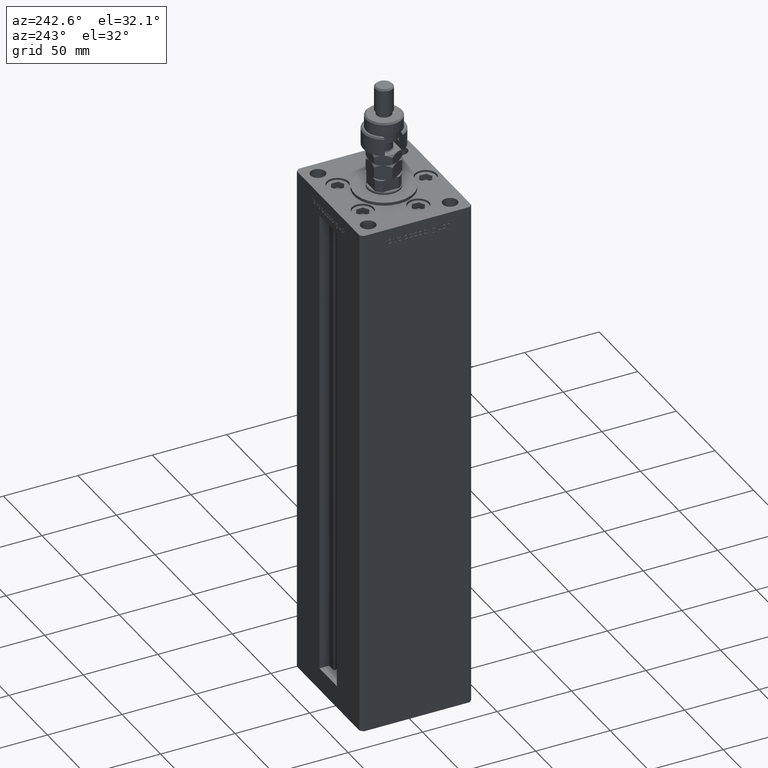
[diagram: clean part render]
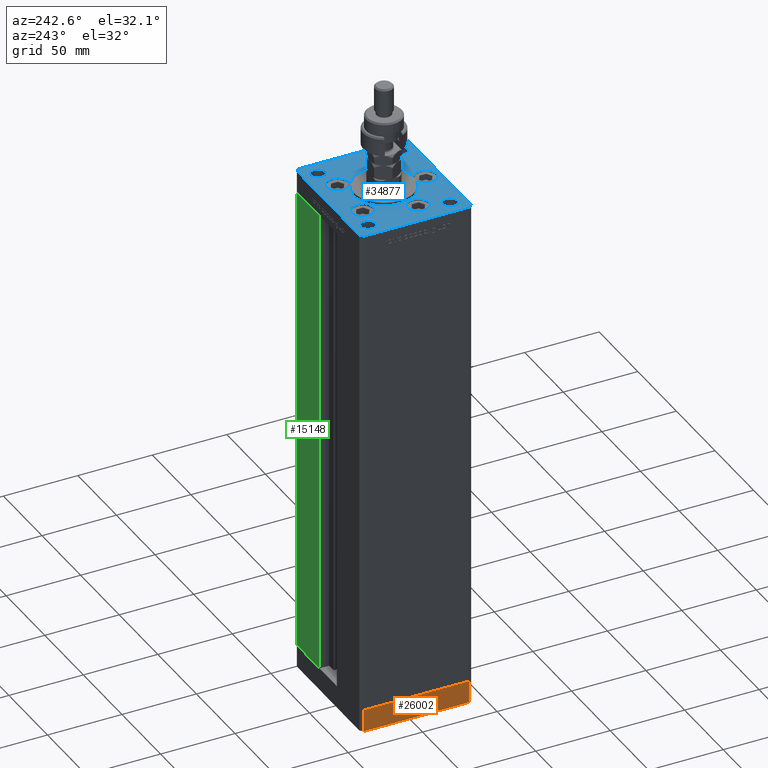
[diagram: same view with three faces highlighted in distinct colors, each labeled with its STEP entity id]
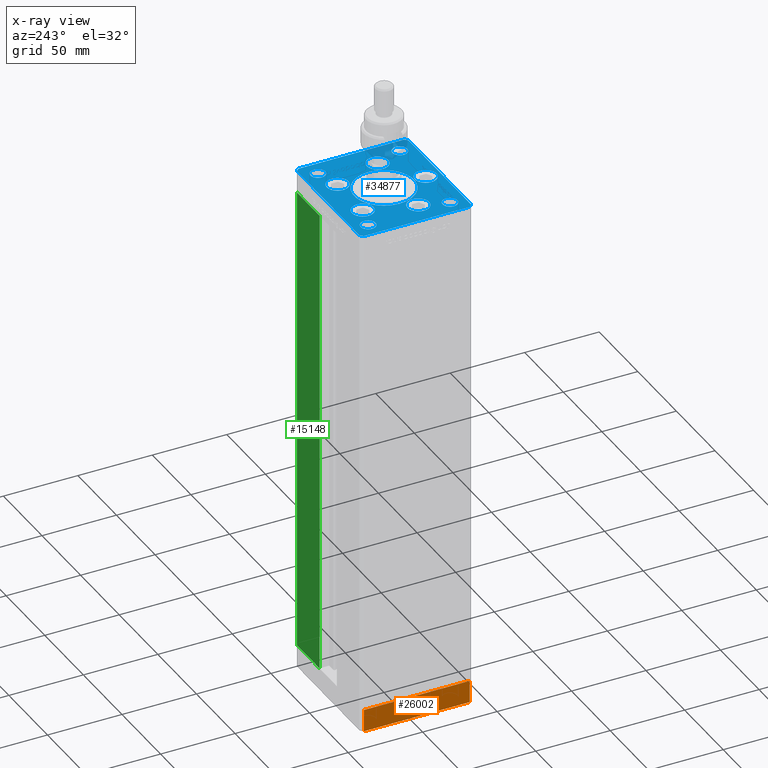
[diagram: x-ray of the same camera — body ghosted, the three highlighted faces saturated]
A machine part, auxiliary view with three faces highlighted in distinct colors.
The next image is the same camera in x-ray (body ghosted, the three faces saturated) — at least one of them is partly hidden behind the body in this view.
Their STEP definitions:

[orange] entity #26002 — the highlighted planar face has unit normal (-1, 0, 0).
#5503 = EDGE_CURVE ( 'NONE', #27085, #37150, #33985, .T. ) ;
#5881 = CARTESIAN_POINT ( 'NONE',  ( 42.49999999999992895, 35.50000000000000000, -15.00000000000000000 ) ) ;
#8294 = VECTOR ( 'NONE', #40926, 1000.000000000000000 ) ;
#8315 = DIRECTION ( 'NONE',  ( 0.000000000000000000, 0.000000000000000000, 1.000000000000000000 ) ) ;
#11657 = VECTOR ( 'NONE', #42355, 1000.000000000000000 ) ;
#11807 = VECTOR ( 'NONE', #8315, 1000.000000000000000 ) ;
#12028 = FACE_OUTER_BOUND ( 'NONE', #53288, .T. ) ;
#13415 = EDGE_CURVE ( 'NONE', #28208, #25765, #20072, .T. ) ;
#14795 = ORIENTED_EDGE ( 'NONE', *, *, #28444, .F. ) ;
#16181 = DIRECTION ( 'NONE',  ( 1.000000000000000000, 1.172770800660376741E-15, -0.000000000000000000 ) ) ;
#17286 = CARTESIAN_POINT ( 'NONE',  ( 42.50000000000000711, -35.50000000000000000, -15.00000000000000000 ) ) ;
#20072 = LINE ( 'NONE', #37862, #8294 ) ;
#21088 = CARTESIAN_POINT ( 'NONE',  ( 42.50000000000000711, -35.50000000000000000, -15.00000000000000000 ) ) ;
#21982 = CARTESIAN_POINT ( 'NONE',  ( 42.50000000000000711, -35.50000000000000000, -15.00000000000000000 ) ) ;
#22293 = DIRECTION ( 'NONE',  ( 0.000000000000000000, 0.000000000000000000, 1.000000000000000000 ) ) ;
#25247 = LINE ( 'NONE', #21088, #11807 ) ;
#25765 = VERTEX_POINT ( 'NONE', #52927 ) ;
#26002 = ADVANCED_FACE ( 'NONE', ( #12028 ), #54296, .T. ) ;
#26546 = ORIENTED_EDGE ( 'NONE', *, *, #51342, .T. ) ;
#27077 = VECTOR ( 'NONE', #22293, 1000.000000000000000 ) ;
#27085 = VERTEX_POINT ( 'NONE', #27612 ) ;
#27612 = CARTESIAN_POINT ( 'NONE',  ( 42.50000000000000711, -35.50000000000000000, 0.000000000000000000 ) ) ;
#28208 = VERTEX_POINT ( 'NONE', #21982 ) ;
#28444 = EDGE_CURVE ( 'NONE', #28208, #27085, #25247, .T. ) ;
#30561 = ORIENTED_EDGE ( 'NONE', *, *, #13415, .T. ) ;
#33985 = LINE ( 'NONE', #38164, #11657 ) ;
#34555 = ORIENTED_EDGE ( 'NONE', *, *, #5503, .F. ) ;
#37150 = VERTEX_POINT ( 'NONE', #39806 ) ;
#37862 = CARTESIAN_POINT ( 'NONE',  ( 42.50000000000000711, -35.50000000000000000, -15.00000000000000000 ) ) ;
#38164 = CARTESIAN_POINT ( 'NONE',  ( 42.50000000000000711, -35.50000000000000000, 0.000000000000000000 ) ) ;
#39240 = DIRECTION ( 'NONE',  ( -1.172770800660376741E-15, 1.000000000000000000, 0.000000000000000000 ) ) ;
#39806 = CARTESIAN_POINT ( 'NONE',  ( 42.49999999999992895, 35.50000000000000000, 0.000000000000000000 ) ) ;
#40926 = DIRECTION ( 'NONE',  ( -1.172770800660376741E-15, 1.000000000000000000, 0.000000000000000000 ) ) ;
#42355 = DIRECTION ( 'NONE',  ( -1.172770800660376741E-15, 1.000000000000000000, 0.000000000000000000 ) ) ;
#51342 = EDGE_CURVE ( 'NONE', #25765, #37150, #51788, .T. ) ;
#51788 = LINE ( 'NONE', #5881, #27077 ) ;
#52564 = AXIS2_PLACEMENT_3D ( 'NONE', #17286, #16181, #39240 ) ;
#52927 = CARTESIAN_POINT ( 'NONE',  ( 42.49999999999992895, 35.50000000000000000, -15.00000000000000000 ) ) ;
#53288 = EDGE_LOOP ( 'NONE', ( #34555, #14795, #30561, #26546 ) ) ;
#54296 = PLANE ( 'NONE',  #52564 ) ;

[blue] entity #34877 — the highlighted planar face has unit normal (0, 0, 1).
#211 = CARTESIAN_POINT ( 'NONE',  ( 32.50000000000000000, -27.50000000000000355, 0.000000000000000000 ) ) ;
#422 = FACE_BOUND ( 'NONE', #46135, .T. ) ;
#665 = DIRECTION ( 'NONE',  ( 1.000000000000000000, 0.000000000000000000, 0.000000000000000000 ) ) ;
#773 = CARTESIAN_POINT ( 'NONE',  ( 32.50000000000000000, 27.49999999999999645, 0.000000000000000000 ) ) ;
#926 = EDGE_CURVE ( 'NONE', #54032, #52426, #16882, .T. ) ;
#1161 = ORIENTED_EDGE ( 'NONE', *, *, #41623, .F. ) ;
#1231 = VECTOR ( 'NONE', #39722, 1000.000000000000000 ) ;
#1715 = ORIENTED_EDGE ( 'NONE', *, *, #36905, .T. ) ;
#1789 = VERTEX_POINT ( 'NONE', #21023 ) ;
#1932 = DIRECTION ( 'NONE',  ( 9.773090005503145261E-17, 1.000000000000000000, 0.000000000000000000 ) ) ;
#1935 = CIRCLE ( 'NONE', #45438, 7.249999999999999112 ) ;
#1973 = VERTEX_POINT ( 'NONE', #17398 ) ;
#2289 = CARTESIAN_POINT ( 'NONE',  ( 16.32291334290544071, 22.74999999999999289, 0.000000000000000000 ) ) ;
#2302 = EDGE_LOOP ( 'NONE', ( #47869, #5739 ) ) ;
#2552 = VERTEX_POINT ( 'NONE', #45516 ) ;
#2850 = CIRCLE ( 'NONE', #44553, 5.000000000000000888 ) ;
#2973 = AXIS2_PLACEMENT_3D ( 'NONE', #211, #17149, #21878 ) ;
#3515 = ORIENTED_EDGE ( 'NONE', *, *, #21926, .F. ) ;
#3603 = LINE ( 'NONE', #24986, #11293 ) ;
#3762 = CIRCLE ( 'NONE', #43673, 7.249999999999999112 ) ;
#3850 = CARTESIAN_POINT ( 'NONE',  ( -23.57291334290544071, 22.74999999999999289, 0.000000000000000000 ) ) ;
#4087 = CARTESIAN_POINT ( 'NONE',  ( -32.50000000000000000, 27.50000000000000711, 0.000000000000000000 ) ) ;
#4227 = DIRECTION ( 'NONE',  ( 0.000000000000000000, 0.000000000000000000, 1.000000000000000000 ) ) ;
#4247 = ORIENTED_EDGE ( 'NONE', *, *, #47991, .T. ) ;
#4255 = DIRECTION ( 'NONE',  ( 0.000000000000000000, 0.000000000000000000, 1.000000000000000000 ) ) ;
#4368 = EDGE_CURVE ( 'NONE', #8746, #2552, #42708, .T. ) ;
#4904 = CIRCLE ( 'NONE', #12001, 4.999999999999997335 ) ;
#5739 = ORIENTED_EDGE ( 'NONE', *, *, #22988, .F. ) ;
#5747 = CARTESIAN_POINT ( 'NONE',  ( 42.50000000000000711, -35.49999999999992895, 0.000000000000000000 ) ) ;
#5910 = DIRECTION ( 'NONE',  ( 1.000000000000000000, 0.000000000000000000, 0.000000000000000000 ) ) ;
#6094 = CARTESIAN_POINT ( 'NONE',  ( 42.50000000000000711, -35.49999999999992895, 0.000000000000000000 ) ) ;
#6222 = AXIS2_PLACEMENT_3D ( 'NONE', #37981, #41054, #50229 ) ;
#6569 = EDGE_LOOP ( 'NONE', ( #42559, #41862 ) ) ;
#6895 = EDGE_CURVE ( 'NONE', #43741, #37759, #9120, .T. ) ;
#6967 = CARTESIAN_POINT ( 'NONE',  ( -40.50000000000000000, 37.49999999999997158, 0.000000000000000000 ) ) ;
#7441 = VECTOR ( 'NONE', #11839, 1000.000000000000000 ) ;
#7506 = CARTESIAN_POINT ( 'NONE',  ( 0.000000000000000000, -28.00000000000000000, 0.000000000000000000 ) ) ;
#7908 = VERTEX_POINT ( 'NONE', #31416 ) ;
#8178 = DIRECTION ( 'NONE',  ( 0.000000000000000000, 0.000000000000000000, 1.000000000000000000 ) ) ;
#8241 = VERTEX_POINT ( 'NONE', #54159 ) ;
#8746 = VERTEX_POINT ( 'NONE', #31154 ) ;
#9101 = VERTEX_POINT ( 'NONE', #46931 ) ;
#9120 = LINE ( 'NONE', #43044, #31242 ) ;
#9210 = EDGE_CURVE ( 'NONE', #54978, #45750, #10019, .T. ) ;
#9317 = CIRCLE ( 'NONE', #40383, 7.249999999999999112 ) ;
#9468 = CIRCLE ( 'NONE', #51187, 5.000000000000004441 ) ;
#9581 = FACE_BOUND ( 'NONE', #6569, .T. ) ;
#9710 = AXIS2_PLACEMENT_3D ( 'NONE', #39746, #53089, #43379 ) ;
#9874 = ORIENTED_EDGE ( 'NONE', *, *, #4368, .F. ) ;
#9988 = VERTEX_POINT ( 'NONE', #3850 ) ;
#10019 = CIRCLE ( 'NONE', #35775, 4.999999999999997335 ) ;
#10742 = AXIS2_PLACEMENT_3D ( 'NONE', #4087, #46628, #20753 ) ;
#10762 = ORIENTED_EDGE ( 'NONE', *, *, #6895, .T. ) ;
#10833 = EDGE_CURVE ( 'NONE', #9101, #49231, #12637, .T. ) ;
#10844 = DIRECTION ( 'NONE',  ( 0.000000000000000000, 0.000000000000000000, 1.000000000000000000 ) ) ;
#10947 = DIRECTION ( 'NONE',  ( 1.000000000000000000, 0.000000000000000000, 0.000000000000000000 ) ) ;
#11226 = CARTESIAN_POINT ( 'NONE',  ( 0.000000000000000000, -28.00000000000000000, 0.000000000000000000 ) ) ;
#11293 = VECTOR ( 'NONE', #55028, 1000.000000000000000 ) ;
#11631 = CARTESIAN_POINT ( 'NONE',  ( 42.50000000000001421, 35.50000000000002132, 0.000000000000000000 ) ) ;
#11834 = EDGE_CURVE ( 'NONE', #13947, #26138, #30543, .T. ) ;
#11839 = DIRECTION ( 'NONE',  ( 1.000000000000000000, 1.370645709413773283E-15, 0.000000000000000000 ) ) ;
#12001 = AXIS2_PLACEMENT_3D ( 'NONE', #773, #34107, #14069 ) ;
#12045 = CARTESIAN_POINT ( 'NONE',  ( -42.50000000000000000, -35.50000000000004263, 0.000000000000000000 ) ) ;
#12307 = DIRECTION ( 'NONE',  ( 0.000000000000000000, 0.000000000000000000, 1.000000000000000000 ) ) ;
#12337 = CARTESIAN_POINT ( 'NONE',  ( -19.14865316429777664, -9.333333333333330373, 0.000000000000000000 ) ) ;
#12637 = CIRCLE ( 'NONE', #16289, 7.250000000000000000 ) ;
#13206 = DIRECTION ( 'NONE',  ( 1.000000000000000000, 0.000000000000000000, 0.000000000000000000 ) ) ;
#13344 = EDGE_CURVE ( 'NONE', #8241, #9988, #50919, .T. ) ;
#13411 = CARTESIAN_POINT ( 'NONE',  ( 26.39865316429777664, -9.333333333333330373, 0.000000000000000000 ) ) ;
#13452 = FACE_BOUND ( 'NONE', #51005, .T. ) ;
#13529 = DIRECTION ( 'NONE',  ( 1.000000000000000000, 0.000000000000000000, 0.000000000000000000 ) ) ;
#13802 = DIRECTION ( 'NONE',  ( 0.000000000000000000, 0.000000000000000000, 1.000000000000000000 ) ) ;
#13947 = VERTEX_POINT ( 'NONE', #41563 ) ;
#14069 = DIRECTION ( 'NONE',  ( 1.000000000000000000, 0.000000000000000000, 0.000000000000000000 ) ) ;
#14074 = CARTESIAN_POINT ( 'NONE',  ( 32.50000000000000000, 27.49999999999999645, 0.000000000000000000 ) ) ;
#14325 = ORIENTED_EDGE ( 'NONE', *, *, #13344, .F. ) ;
#14593 = DIRECTION ( 'NONE',  ( 1.000000000000000000, 0.000000000000000000, 0.000000000000000000 ) ) ;
#14957 = DIRECTION ( 'NONE',  ( -1.000000000000000000, 0.000000000000000000, 0.000000000000000000 ) ) ;
#15649 = DIRECTION ( 'NONE',  ( 0.7071067811865487940, -0.7071067811865463515, 0.000000000000000000 ) ) ;
#15984 = LINE ( 'NONE', #20994, #7441 ) ;
#16289 = AXIS2_PLACEMENT_3D ( 'NONE', #7506, #10844, #54214 ) ;
#16550 = CIRCLE ( 'NONE', #42337, 7.249999999999999112 ) ;
#16882 = CIRCLE ( 'NONE', #6222, 7.249999999999999112 ) ;
#16987 = CARTESIAN_POINT ( 'NONE',  ( 40.50000000000001421, -37.49999999999992184, 0.000000000000000000 ) ) ;
#16989 = EDGE_LOOP ( 'NONE', ( #36825, #3515 ) ) ;
#17075 = FACE_BOUND ( 'NONE', #2302, .T. ) ;
#17149 = DIRECTION ( 'NONE',  ( -0.000000000000000000, -0.000000000000000000, -1.000000000000000000 ) ) ;
#17360 = PLANE ( 'NONE',  #35047 ) ;
#17398 = CARTESIAN_POINT ( 'NONE',  ( 23.57291334290544071, 22.74999999999999289, 0.000000000000000000 ) ) ;
#17596 = DIRECTION ( 'NONE',  ( 0.000000000000000000, 0.000000000000000000, 1.000000000000000000 ) ) ;
#18707 = CARTESIAN_POINT ( 'NONE',  ( 7.250000000000000000, -28.00000000000000000, 0.000000000000000000 ) ) ;
#18770 = DIRECTION ( 'NONE',  ( 0.000000000000000000, 0.000000000000000000, 1.000000000000000000 ) ) ;
#18998 = VERTEX_POINT ( 'NONE', #48593 ) ;
#19161 = ORIENTED_EDGE ( 'NONE', *, *, #50597, .F. ) ;
#19833 = DIRECTION ( 'NONE',  ( -0.7071067811865536790, -0.7071067811865414665, 0.000000000000000000 ) ) ;
#19992 = EDGE_CURVE ( 'NONE', #27359, #51367, #27628, .T. ) ;
#20388 = CARTESIAN_POINT ( 'NONE',  ( -40.50000000000000000, 37.49999999999997158, 0.000000000000000000 ) ) ;
#20753 = DIRECTION ( 'NONE',  ( -1.000000000000000000, 0.000000000000000000, 0.000000000000000000 ) ) ;
#20813 = AXIS2_PLACEMENT_3D ( 'NONE', #53688, #48960, #40622 ) ;
#20994 = CARTESIAN_POINT ( 'NONE',  ( -40.50000000000000711, -37.50000000000003553, 0.000000000000000000 ) ) ;
#21023 = CARTESIAN_POINT ( 'NONE',  ( -33.64865316429777664, -9.333333333333328596, 0.000000000000000000 ) ) ;
#21463 = CARTESIAN_POINT ( 'NONE',  ( 27.50000000000000355, 27.49999999999999645, 0.000000000000000000 ) ) ;
#21532 = FACE_BOUND ( 'NONE', #16989, .T. ) ;
#21878 = DIRECTION ( 'NONE',  ( -1.000000000000000000, 0.000000000000000000, 0.000000000000000000 ) ) ;
#21902 = DIRECTION ( 'NONE',  ( 0.7071067811865474617, 0.7071067811865474617, 0.000000000000000000 ) ) ;
#21926 = EDGE_CURVE ( 'NONE', #52426, #54032, #1935, .T. ) ;
#22021 = CARTESIAN_POINT ( 'NONE',  ( 27.50000000000000355, -27.50000000000000355, 0.000000000000000000 ) ) ;
#22129 = VECTOR ( 'NONE', #45565, 1000.000000000000000 ) ;
#22184 = EDGE_LOOP ( 'NONE', ( #14325, #27518 ) ) ;
#22617 = VERTEX_POINT ( 'NONE', #12337 ) ;
#22988 = EDGE_CURVE ( 'NONE', #24353, #1973, #3762, .T. ) ;
#23171 = EDGE_LOOP ( 'NONE', ( #1161, #29961 ) ) ;
#23460 = ORIENTED_EDGE ( 'NONE', *, *, #36895, .T. ) ;
#23691 = DIRECTION ( 'NONE',  ( 0.000000000000000000, 0.000000000000000000, 1.000000000000000000 ) ) ;
#23707 = CARTESIAN_POINT ( 'NONE',  ( 19.14865316429777664, -9.333333333333328596, 0.000000000000000000 ) ) ;
#23865 = DIRECTION ( 'NONE',  ( -0.000000000000000000, -0.000000000000000000, -1.000000000000000000 ) ) ;
#23909 = AXIS2_PLACEMENT_3D ( 'NONE', #37203, #23865, #14957 ) ;
#23935 = ORIENTED_EDGE ( 'NONE', *, *, #9210, .F. ) ;
#24353 = VERTEX_POINT ( 'NONE', #51863 ) ;
#24741 = CARTESIAN_POINT ( 'NONE',  ( -42.50000000000000000, -35.50000000000004263, 0.000000000000000000 ) ) ;
#24986 = CARTESIAN_POINT ( 'NONE',  ( -42.50000000000000711, 35.50000000000000000, 0.000000000000000000 ) ) ;
#25393 = DIRECTION ( 'NONE',  ( 1.000000000000000000, 0.000000000000000000, 0.000000000000000000 ) ) ;
#25601 = CARTESIAN_POINT ( 'NONE',  ( 16.32291334290544071, 22.74999999999999289, 0.000000000000000000 ) ) ;
#25914 = EDGE_CURVE ( 'NONE', #37546, #50933, #2850, .T. ) ;
#25971 = FACE_BOUND ( 'NONE', #22184, .T. ) ;
#26047 = CIRCLE ( 'NONE', #2973, 4.999999999999997335 ) ;
#26138 = VERTEX_POINT ( 'NONE', #6967 ) ;
#26530 = ORIENTED_EDGE ( 'NONE', *, *, #40282, .T. ) ;
#26932 = LINE ( 'NONE', #6094, #34551 ) ;
#27098 = VECTOR ( 'NONE', #19833, 1000.000000000000000 ) ;
#27359 = VERTEX_POINT ( 'NONE', #33574 ) ;
#27481 = ORIENTED_EDGE ( 'NONE', *, *, #38723, .T. ) ;
#27518 = ORIENTED_EDGE ( 'NONE', *, *, #39145, .F. ) ;
#27628 = CIRCLE ( 'NONE', #10742, 5.000000000000004441 ) ;
#28329 = CIRCLE ( 'NONE', #23909, 4.999999999999997335 ) ;
#28418 = DIRECTION ( 'NONE',  ( 0.000000000000000000, 0.000000000000000000, 1.000000000000000000 ) ) ;
#28930 = CIRCLE ( 'NONE', #52058, 7.249999999999999112 ) ;
#29011 = AXIS2_PLACEMENT_3D ( 'NONE', #37064, #4255, #29795 ) ;
#29212 = DIRECTION ( 'NONE',  ( 1.000000000000000000, 0.000000000000000000, 0.000000000000000000 ) ) ;
#29431 = DIRECTION ( 'NONE',  ( 1.000000000000000000, 0.000000000000000000, 0.000000000000000000 ) ) ;
#29795 = DIRECTION ( 'NONE',  ( 1.000000000000000000, 0.000000000000000000, 0.000000000000000000 ) ) ;
#29942 = CARTESIAN_POINT ( 'NONE',  ( 37.50000000000000000, 27.49999999999999645, 0.000000000000000000 ) ) ;
#29961 = ORIENTED_EDGE ( 'NONE', *, *, #10833, .F. ) ;
#30353 = EDGE_CURVE ( 'NONE', #18998, #35043, #26047, .T. ) ;
#30543 = LINE ( 'NONE', #39445, #1231 ) ;
#30685 = DIRECTION ( 'NONE',  ( 1.000000000000000000, 0.000000000000000000, 0.000000000000000000 ) ) ;
#31154 = CARTESIAN_POINT ( 'NONE',  ( -20.00000000000000000, -6.938893903907228378E-15, 0.000000000000000000 ) ) ;
#31166 = CARTESIAN_POINT ( 'NONE',  ( -37.50000000000000711, 27.50000000000000711, 0.000000000000000000 ) ) ;
#31242 = VECTOR ( 'NONE', #21902, 1000.000000000000114 ) ;
#31416 = CARTESIAN_POINT ( 'NONE',  ( 42.50000000000001421, 35.50000000000002132, 0.000000000000000000 ) ) ;
#31448 = EDGE_CURVE ( 'NONE', #36360, #43741, #15984, .T. ) ;
#32396 = CARTESIAN_POINT ( 'NONE',  ( 33.64865316429777664, -9.333333333333330373, 0.000000000000000000 ) ) ;
#32584 = CIRCLE ( 'NONE', #29011, 7.249999999999999112 ) ;
#32652 = EDGE_LOOP ( 'NONE', ( #23935, #44397 ) ) ;
#33491 = CARTESIAN_POINT ( 'NONE',  ( -27.50000000000000000, -27.50000000000000355, 0.000000000000000000 ) ) ;
#33574 = CARTESIAN_POINT ( 'NONE',  ( -27.50000000000000000, 27.50000000000000711, 0.000000000000000000 ) ) ;
#33886 = CARTESIAN_POINT ( 'NONE',  ( -26.39865316429777664, -9.333333333333330373, 0.000000000000000000 ) ) ;
#34107 = DIRECTION ( 'NONE',  ( 0.000000000000000000, 0.000000000000000000, 1.000000000000000000 ) ) ;
#34190 = EDGE_CURVE ( 'NONE', #22617, #1789, #9317, .T. ) ;
#34221 = VECTOR ( 'NONE', #15649, 1000.000000000000000 ) ;
#34323 = CARTESIAN_POINT ( 'NONE',  ( 0.000000000000000000, 0.000000000000000000, 0.000000000000000000 ) ) ;
#34551 = VECTOR ( 'NONE', #1932, 1000.000000000000000 ) ;
#34743 = AXIS2_PLACEMENT_3D ( 'NONE', #41007, #18770, #14593 ) ;
#34859 = FACE_OUTER_BOUND ( 'NONE', #50696, .T. ) ;
#34877 = ADVANCED_FACE ( 'NONE', ( #51563, #25971, #17075, #21532, #51018, #9581, #13452, #47401, #422, #34859, #46859 ), #17360, .T. ) ;
#35043 = VERTEX_POINT ( 'NONE', #22021 ) ;
#35047 = AXIS2_PLACEMENT_3D ( 'NONE', #34323, #42127, #30685 ) ;
#35331 = EDGE_CURVE ( 'NONE', #45750, #54978, #4904, .T. ) ;
#35775 = AXIS2_PLACEMENT_3D ( 'NONE', #14074, #13802, #13529 ) ;
#36360 = VERTEX_POINT ( 'NONE', #41449 ) ;
#36825 = ORIENTED_EDGE ( 'NONE', *, *, #926, .F. ) ;
#36895 = EDGE_CURVE ( 'NONE', #26138, #42874, #40965, .T. ) ;
#36905 = EDGE_CURVE ( 'NONE', #45489, #36360, #50149, .T. ) ;
#37064 = CARTESIAN_POINT ( 'NONE',  ( -26.39865316429777664, -9.333333333333330373, 0.000000000000000000 ) ) ;
#37203 = CARTESIAN_POINT ( 'NONE',  ( 32.50000000000000000, -27.50000000000000355, 0.000000000000000000 ) ) ;
#37546 = VERTEX_POINT ( 'NONE', #54450 ) ;
#37759 = VERTEX_POINT ( 'NONE', #5747 ) ;
#37981 = CARTESIAN_POINT ( 'NONE',  ( 26.39865316429777664, -9.333333333333330373, 0.000000000000000000 ) ) ;
#38250 = EDGE_CURVE ( 'NONE', #1973, #24353, #28930, .T. ) ;
#38288 = EDGE_LOOP ( 'NONE', ( #42071, #52731 ) ) ;
#38300 = ORIENTED_EDGE ( 'NONE', *, *, #47243, .T. ) ;
#38591 = CARTESIAN_POINT ( 'NONE',  ( -32.50000000000000000, 27.50000000000000711, 0.000000000000000000 ) ) ;
#38723 = EDGE_CURVE ( 'NONE', #51367, #27359, #9468, .T. ) ;
#39145 = EDGE_CURVE ( 'NONE', #9988, #8241, #16550, .T. ) ;
#39445 = CARTESIAN_POINT ( 'NONE',  ( 40.50000000000000711, 37.50000000000000711, 0.000000000000000000 ) ) ;
#39722 = DIRECTION ( 'NONE',  ( -1.000000000000000000, -4.283267841918041508E-16, 0.000000000000000000 ) ) ;
#39746 = CARTESIAN_POINT ( 'NONE',  ( 0.000000000000000000, -6.938893903907228378E-15, 0.000000000000000000 ) ) ;
#40107 = CARTESIAN_POINT ( 'NONE',  ( -16.32291334290544071, 22.74999999999999289, 0.000000000000000000 ) ) ;
#40282 = EDGE_CURVE ( 'NONE', #42874, #45489, #3603, .T. ) ;
#40357 = CIRCLE ( 'NONE', #20813, 5.000000000000000888 ) ;
#40383 = AXIS2_PLACEMENT_3D ( 'NONE', #33886, #46708, #29431 ) ;
#40622 = DIRECTION ( 'NONE',  ( 1.000000000000000000, 0.000000000000000000, 0.000000000000000000 ) ) ;
#40874 = EDGE_CURVE ( 'NONE', #1789, #22617, #32584, .T. ) ;
#40965 = LINE ( 'NONE', #20388, #27098 ) ;
#41007 = CARTESIAN_POINT ( 'NONE',  ( 0.000000000000000000, -6.938893903907228378E-15, 0.000000000000000000 ) ) ;
#41054 = DIRECTION ( 'NONE',  ( 0.000000000000000000, 0.000000000000000000, 1.000000000000000000 ) ) ;
#41449 = CARTESIAN_POINT ( 'NONE',  ( -40.50000000000000711, -37.50000000000003553, 0.000000000000000000 ) ) ;
#41563 = CARTESIAN_POINT ( 'NONE',  ( 40.50000000000000711, 37.50000000000000711, 0.000000000000000000 ) ) ;
#41623 = EDGE_CURVE ( 'NONE', #49231, #9101, #49358, .T. ) ;
#41676 = DIRECTION ( 'NONE',  ( -1.000000000000000000, 0.000000000000000000, 0.000000000000000000 ) ) ;
#41862 = ORIENTED_EDGE ( 'NONE', *, *, #40874, .F. ) ;
#42071 = ORIENTED_EDGE ( 'NONE', *, *, #30353, .T. ) ;
#42127 = DIRECTION ( 'NONE',  ( -0.000000000000000000, 0.000000000000000000, 1.000000000000000000 ) ) ;
#42224 = DIRECTION ( 'NONE',  ( -0.000000000000000000, -0.000000000000000000, -1.000000000000000000 ) ) ;
#42337 = AXIS2_PLACEMENT_3D ( 'NONE', #54333, #8178, #25393 ) ;
#42559 = ORIENTED_EDGE ( 'NONE', *, *, #34190, .F. ) ;
#42708 = CIRCLE ( 'NONE', #34743, 20.00000000000000000 ) ;
#42874 = VERTEX_POINT ( 'NONE', #46741 ) ;
#43044 = CARTESIAN_POINT ( 'NONE',  ( 40.50000000000001421, -37.49999999999992184, 0.000000000000000000 ) ) ;
#43316 = ORIENTED_EDGE ( 'NONE', *, *, #19992, .T. ) ;
#43379 = DIRECTION ( 'NONE',  ( 1.000000000000000000, 0.000000000000000000, 0.000000000000000000 ) ) ;
#43673 = AXIS2_PLACEMENT_3D ( 'NONE', #25601, #4227, #29212 ) ;
#43741 = VERTEX_POINT ( 'NONE', #16987 ) ;
#44397 = ORIENTED_EDGE ( 'NONE', *, *, #35331, .F. ) ;
#44553 = AXIS2_PLACEMENT_3D ( 'NONE', #46788, #12307, #50407 ) ;
#45438 = AXIS2_PLACEMENT_3D ( 'NONE', #13411, #17596, #665 ) ;
#45489 = VERTEX_POINT ( 'NONE', #24741 ) ;
#45516 = CARTESIAN_POINT ( 'NONE',  ( 20.00000000000000000, -4.489600305612522259E-15, 0.000000000000000000 ) ) ;
#45565 = DIRECTION ( 'NONE',  ( -0.7071067811865524577, 0.7071067811865426878, 0.000000000000000000 ) ) ;
#45750 = VERTEX_POINT ( 'NONE', #21463 ) ;
#45825 = AXIS2_PLACEMENT_3D ( 'NONE', #11226, #28418, #10947 ) ;
#46135 = EDGE_LOOP ( 'NONE', ( #19161, #52861 ) ) ;
#46628 = DIRECTION ( 'NONE',  ( -0.000000000000000000, -0.000000000000000000, -1.000000000000000000 ) ) ;
#46708 = DIRECTION ( 'NONE',  ( 0.000000000000000000, 0.000000000000000000, 1.000000000000000000 ) ) ;
#46741 = CARTESIAN_POINT ( 'NONE',  ( -42.50000000000000711, 35.50000000000000000, 0.000000000000000000 ) ) ;
#46788 = CARTESIAN_POINT ( 'NONE',  ( -32.50000000000000000, -27.50000000000000355, 0.000000000000000000 ) ) ;
#46859 = FACE_BOUND ( 'NONE', #38288, .T. ) ;
#46931 = CARTESIAN_POINT ( 'NONE',  ( -7.250000000000000000, -28.00000000000000000, 0.000000000000000000 ) ) ;
#47212 = EDGE_CURVE ( 'NONE', #35043, #18998, #28329, .T. ) ;
#47243 = EDGE_CURVE ( 'NONE', #7908, #13947, #49466, .T. ) ;
#47285 = ORIENTED_EDGE ( 'NONE', *, *, #11834, .T. ) ;
#47401 = FACE_BOUND ( 'NONE', #32652, .T. ) ;
#47869 = ORIENTED_EDGE ( 'NONE', *, *, #38250, .F. ) ;
#47912 = EDGE_CURVE ( 'NONE', #2552, #8746, #54133, .T. ) ;
#47991 = EDGE_CURVE ( 'NONE', #37759, #7908, #26932, .T. ) ;
#47996 = ORIENTED_EDGE ( 'NONE', *, *, #47912, .F. ) ;
#48440 = DIRECTION ( 'NONE',  ( 0.000000000000000000, 0.000000000000000000, 1.000000000000000000 ) ) ;
#48593 = CARTESIAN_POINT ( 'NONE',  ( 37.50000000000000000, -27.50000000000000355, 0.000000000000000000 ) ) ;
#48960 = DIRECTION ( 'NONE',  ( 0.000000000000000000, 0.000000000000000000, 1.000000000000000000 ) ) ;
#49231 = VERTEX_POINT ( 'NONE', #18707 ) ;
#49358 = CIRCLE ( 'NONE', #45825, 7.250000000000000000 ) ;
#49466 = LINE ( 'NONE', #11631, #22129 ) ;
#50149 = LINE ( 'NONE', #12045, #34221 ) ;
#50229 = DIRECTION ( 'NONE',  ( 1.000000000000000000, 0.000000000000000000, 0.000000000000000000 ) ) ;
#50407 = DIRECTION ( 'NONE',  ( 1.000000000000000000, 0.000000000000000000, 0.000000000000000000 ) ) ;
#50597 = EDGE_CURVE ( 'NONE', #50933, #37546, #40357, .T. ) ;
#50696 = EDGE_LOOP ( 'NONE', ( #1715, #53966, #10762, #4247, #38300, #47285, #23460, #26530 ) ) ;
#50919 = CIRCLE ( 'NONE', #51801, 7.249999999999999112 ) ;
#50933 = VERTEX_POINT ( 'NONE', #33491 ) ;
#51005 = EDGE_LOOP ( 'NONE', ( #43316, #27481 ) ) ;
#51018 = FACE_BOUND ( 'NONE', #23171, .T. ) ;
#51187 = AXIS2_PLACEMENT_3D ( 'NONE', #38591, #42224, #41676 ) ;
#51367 = VERTEX_POINT ( 'NONE', #31166 ) ;
#51563 = FACE_BOUND ( 'NONE', #54774, .T. ) ;
#51801 = AXIS2_PLACEMENT_3D ( 'NONE', #40107, #23691, #5910 ) ;
#51863 = CARTESIAN_POINT ( 'NONE',  ( 9.072913342905442491, 22.74999999999999289, 0.000000000000000000 ) ) ;
#52058 = AXIS2_PLACEMENT_3D ( 'NONE', #2289, #48440, #13206 ) ;
#52426 = VERTEX_POINT ( 'NONE', #23707 ) ;
#52731 = ORIENTED_EDGE ( 'NONE', *, *, #47212, .T. ) ;
#52861 = ORIENTED_EDGE ( 'NONE', *, *, #25914, .F. ) ;
#53089 = DIRECTION ( 'NONE',  ( 0.000000000000000000, 0.000000000000000000, 1.000000000000000000 ) ) ;
#53688 = CARTESIAN_POINT ( 'NONE',  ( -32.50000000000000000, -27.50000000000000355, 0.000000000000000000 ) ) ;
#53966 = ORIENTED_EDGE ( 'NONE', *, *, #31448, .T. ) ;
#54032 = VERTEX_POINT ( 'NONE', #32396 ) ;
#54133 = CIRCLE ( 'NONE', #9710, 20.00000000000000000 ) ;
#54159 = CARTESIAN_POINT ( 'NONE',  ( -9.072913342905442491, 22.74999999999999289, 0.000000000000000000 ) ) ;
#54214 = DIRECTION ( 'NONE',  ( 1.000000000000000000, 0.000000000000000000, 0.000000000000000000 ) ) ;
#54333 = CARTESIAN_POINT ( 'NONE',  ( -16.32291334290544071, 22.74999999999999289, 0.000000000000000000 ) ) ;
#54450 = CARTESIAN_POINT ( 'NONE',  ( -37.50000000000000711, -27.50000000000000355, 0.000000000000000000 ) ) ;
#54774 = EDGE_LOOP ( 'NONE', ( #9874, #47996 ) ) ;
#54978 = VERTEX_POINT ( 'NONE', #29942 ) ;
#55028 = DIRECTION ( 'NONE',  ( 9.773090005503134168E-17, -1.000000000000000000, 0.000000000000000000 ) ) ;

[green] entity #15148 — the highlighted planar face has unit normal (-0, -1, 0).
#210 = CARTESIAN_POINT ( 'NONE',  ( 40.50000000000000000, 37.50000000000000711, 318.5000000000000000 ) ) ;
#383 = ORIENTED_EDGE ( 'NONE', *, *, #28507, .T. ) ;
#831 = DIRECTION ( 'NONE',  ( -1.000000000000000000, 2.372271420139223331E-16, 0.000000000000000000 ) ) ;
#3480 = ORIENTED_EDGE ( 'NONE', *, *, #26288, .T. ) ;
#4211 = CARTESIAN_POINT ( 'NONE',  ( -11.25000000000000000, 37.50000000000000000, 318.5000000000000000 ) ) ;
#4924 = VERTEX_POINT ( 'NONE', #26884 ) ;
#4954 = CARTESIAN_POINT ( 'NONE',  ( 40.50000000000000000, 37.50000000000000711, 318.5000000000000000 ) ) ;
#6550 = DIRECTION ( 'NONE',  ( -2.372271420139223331E-16, -1.000000000000000000, 0.000000000000000000 ) ) ;
#7556 = AXIS2_PLACEMENT_3D ( 'NONE', #33962, #6550, #42329 ) ;
#9424 = CARTESIAN_POINT ( 'NONE',  ( 11.25000000000000000, 37.50000000000000000, 0.000000000000000000 ) ) ;
#10899 = VECTOR ( 'NONE', #21633, 1000.000000000000000 ) ;
#12038 = VERTEX_POINT ( 'NONE', #210 ) ;
#14638 = DIRECTION ( 'NONE',  ( -0.000000000000000000, -0.000000000000000000, -1.000000000000000000 ) ) ;
#15148 = ADVANCED_FACE ( 'NONE', ( #49093 ), #24541, .F. ) ;
#17183 = LINE ( 'NONE', #46954, #10899 ) ;
#20624 = VERTEX_POINT ( 'NONE', #9424 ) ;
#21633 = DIRECTION ( 'NONE',  ( -0.000000000000000000, -0.000000000000000000, 1.000000000000000000 ) ) ;
#24541 = PLANE ( 'NONE',  #7556 ) ;
#26134 = LINE ( 'NONE', #4211, #45828 ) ;
#26288 = EDGE_CURVE ( 'NONE', #54895, #20624, #38905, .T. ) ;
#26884 = CARTESIAN_POINT ( 'NONE',  ( 11.24999999999999289, 37.50000000000000000, 318.5000000000000000 ) ) ;
#27196 = CARTESIAN_POINT ( 'NONE',  ( 40.50000000000000000, 37.50000000000000711, 0.000000000000000000 ) ) ;
#28507 = EDGE_CURVE ( 'NONE', #20624, #4924, #17183, .T. ) ;
#30278 = ORIENTED_EDGE ( 'NONE', *, *, #38138, .T. ) ;
#33962 = CARTESIAN_POINT ( 'NONE',  ( -11.25000000000000000, 37.50000000000000000, 318.5000000000000000 ) ) ;
#35132 = EDGE_LOOP ( 'NONE', ( #3480, #383, #30278, #39452 ) ) ;
#36963 = VECTOR ( 'NONE', #14638, 1000.000000000000000 ) ;
#38138 = EDGE_CURVE ( 'NONE', #4924, #12038, #26134, .T. ) ;
#38785 = EDGE_CURVE ( 'NONE', #12038, #54895, #52752, .T. ) ;
#38905 = LINE ( 'NONE', #43086, #48115 ) ;
#39452 = ORIENTED_EDGE ( 'NONE', *, *, #38785, .T. ) ;
#42329 = DIRECTION ( 'NONE',  ( 1.000000000000000000, -2.372271420139223331E-16, 0.000000000000000000 ) ) ;
#43086 = CARTESIAN_POINT ( 'NONE',  ( -11.25000000000000000, 37.50000000000000000, 0.000000000000000000 ) ) ;
#43110 = DIRECTION ( 'NONE',  ( 1.000000000000000000, 0.000000000000000000, 0.000000000000000000 ) ) ;
#45828 = VECTOR ( 'NONE', #43110, 1000.000000000000000 ) ;
#46954 = CARTESIAN_POINT ( 'NONE',  ( 11.25000000000000000, 37.50000000000000000, 0.000000000000000000 ) ) ;
#48115 = VECTOR ( 'NONE', #831, 1000.000000000000000 ) ;
#49093 = FACE_OUTER_BOUND ( 'NONE', #35132, .T. ) ;
#52752 = LINE ( 'NONE', #4954, #36963 ) ;
#54895 = VERTEX_POINT ( 'NONE', #27196 ) ;